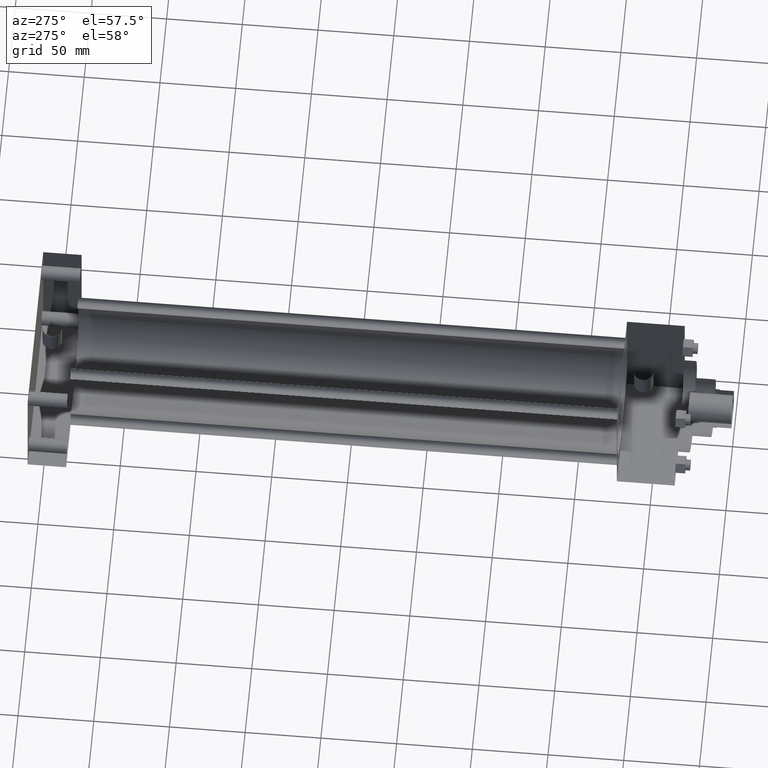
[diagram: clean part render]
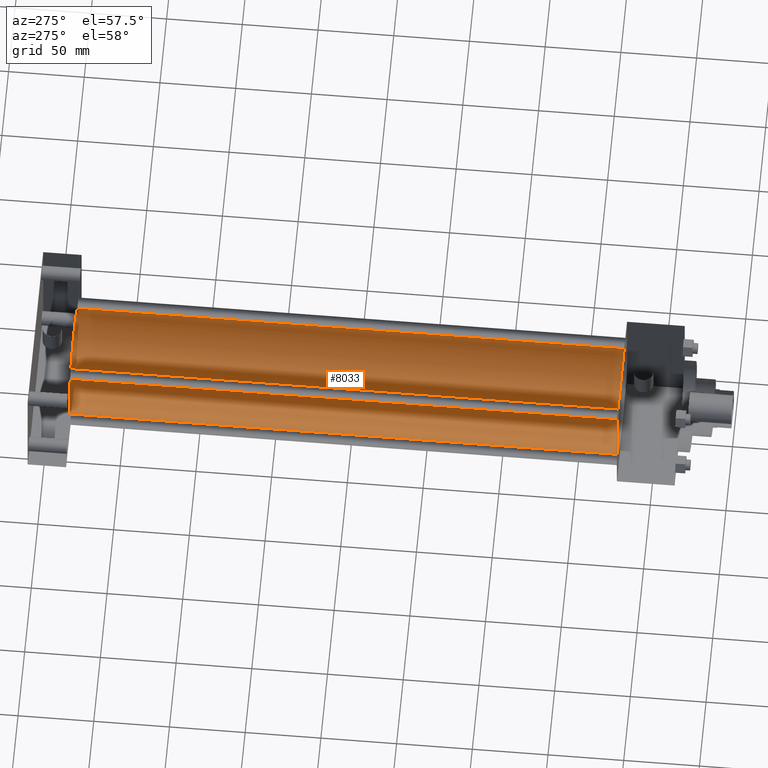
[diagram: same view with one face highlighted and labeled with its STEP entity id]
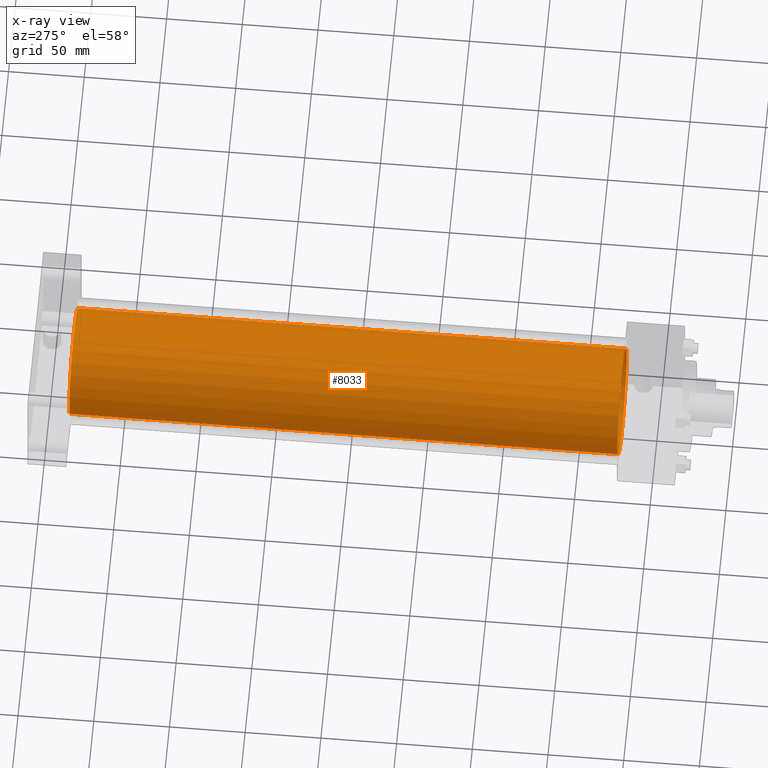
[diagram: x-ray of the same camera — body ghosted, the highlighted face saturated]
A machine part, auxiliary view. The second image highlights one B-rep face of the part: STEP entity #8033.
The next image is the same camera in x-ray: the body ghosted, the highlighted face saturated — about 0% of this face is hidden behind the body in this view.
In plain terms, the highlighted cylindrical surface (bore or boss wall) has radius 34.925 mm, axis along (0, -1, 0).
Its self-contained STEP definition (entity closure, byte-faithful):
#503=EDGE_CURVE('',#509,#509,#504,.T.);
#504=CIRCLE('',#505,3.492500000E+001);
#505=AXIS2_PLACEMENT_3D('',#506,#507,#508);
#506=CARTESIAN_POINT('',(0.000000000E+000,7.302500000E+001,0.000000000E+000));
#507=DIRECTION('',(0.0E+000,1.0E+000,0.0E+000));
#508=DIRECTION('',(1.0E+000,0.0E+000,0.0E+000));
#509=VERTEX_POINT('',#510);
#510=CARTESIAN_POINT('',(3.492500000E+001,7.302500000E+001,0.000000000E+000));
#2364=FACE_OUTER_BOUND('',#2366,.T.);
#2365=FACE_BOUND('',#2367,.T.);
#2366=EDGE_LOOP('',(#2368));
#2367=EDGE_LOOP('',(#2377));
#2368=ORIENTED_EDGE('',*,*,#2369,.F.);
#2369=EDGE_CURVE('',#2375,#2375,#2370,.T.);
#2370=CIRCLE('',#2371,3.492500000E+001);
#2371=AXIS2_PLACEMENT_3D('',#2372,#2373,#2374);
#2372=CARTESIAN_POINT('',(0.000000000E+000,4.349750000E+002,0.000000000E+000));
#2373=DIRECTION('',(0.0E+000,1.0E+000,0.0E+000));
#2374=DIRECTION('',(1.0E+000,0.0E+000,0.0E+000));
#2375=VERTEX_POINT('',#2376);
#2376=CARTESIAN_POINT('',(3.492500000E+001,4.349750000E+002,0.000000000E+000));
#2377=ORIENTED_EDGE('',*,*,#503,.T.);
#2378=CYLINDRICAL_SURFACE('',#2379,3.492500000E+001);
#2379=AXIS2_PLACEMENT_3D('',#2380,#2381,#2382);
#2380=CARTESIAN_POINT('',(0.000000000E+000,4.349750000E+002,0.000000000E+000));
#2381=DIRECTION('',(0.0E+000,-1.0E+000,0.0E+000));
#2382=DIRECTION('',(0.0E+000,0.0E+000,-1.0E+000));
#8033=ADVANCED_FACE('',(#2364,#2365),#2378,.T.);